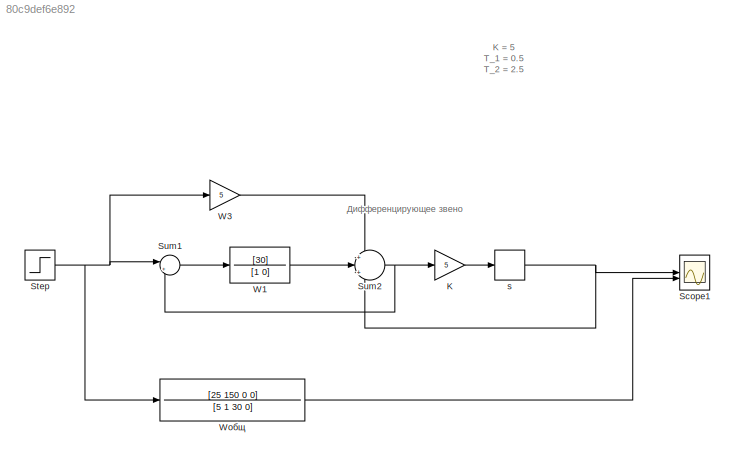
MODEL slx_80c9def6e892
KIND model
CONFIG AbsTol = auto
CONFIG EnableMultiTasking = off
CONFIG FixedStep = auto
CONFIG MaxStep = auto
CONFIG MinStep = auto
CONFIG RelTol = 1e-3
CONFIG SampleTimeConstraint = Unconstrained
CONFIG SolverName = VariableStepAuto
CONFIG StartTime = 0.0
CONFIG StopTime = 10.0
BLOCK [Gain] K
  Gain = 5
BLOCK [Scope] Scope1
  Floating = off
  NumInputPorts = 2
  ScopeSpecificationString = Simulink.scopes.TimeScopeBlockCfg('CurrentConfiguration', extmgr.ConfigurationSet(extmgr.Configuration('Core','General UI',true),extmgr.Configuration('Core','Source UI',true),extmgr.Configuration('Sources','WiredSimulink',true),extmgr.Configuration('Visuals','Time Domain',true,'SerializedDisplays',{struct('MinYLimReal','-13.77831','MaxYLimReal','15.30954','YLabelReal','','MinYLimMag','0.00000','Ma...<+1488ch>
BLOCK [Step] Step
  SampleTime = 0
BLOCK [Sum] Sum1
  Inputs = |+-
BLOCK [Sum] Sum2
  Inputs = +|+|-
BLOCK [TransferFcn] W1
  Denominator = [1 0]
  Numerator = [30]
BLOCK [Gain] W3
  Gain = 5
BLOCK [TransferFcn] Wобщ
  Denominator = [5 1 30 0]
  Numerator = [25 150 0 0]
BLOCK [Derivative] s
  CoefficientInTFapproximation = 0
ANNOTATION (root): K = 5 T_1 = 0.5 T_2 = 2.5
ANNOTATION (root): Дифференцирующее звено
LINE K:1 -> s:1
NET Step:1 -> Sum1:1, W3:1, Wобщ:1
LINE Sum1:1 -> W1:1
NET Sum2:1 -> K:1, Sum1:2
LINE W1:1 -> Sum2:2
LINE W3:1 -> Sum2:1
LINE Wобщ:1 -> Scope1:2
NET s:1 -> Scope1:1, Sum2:3
note: NET lines group one-source signal fan-out (src -> all destinations, sorted); 1:1 wires keep LINE
